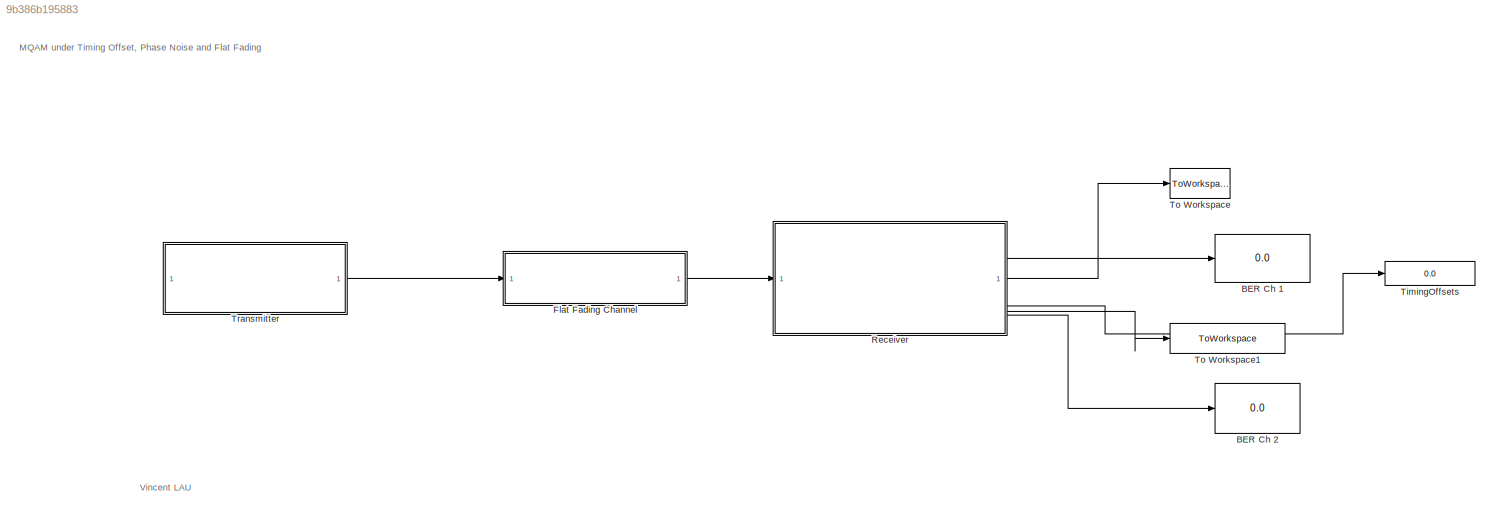
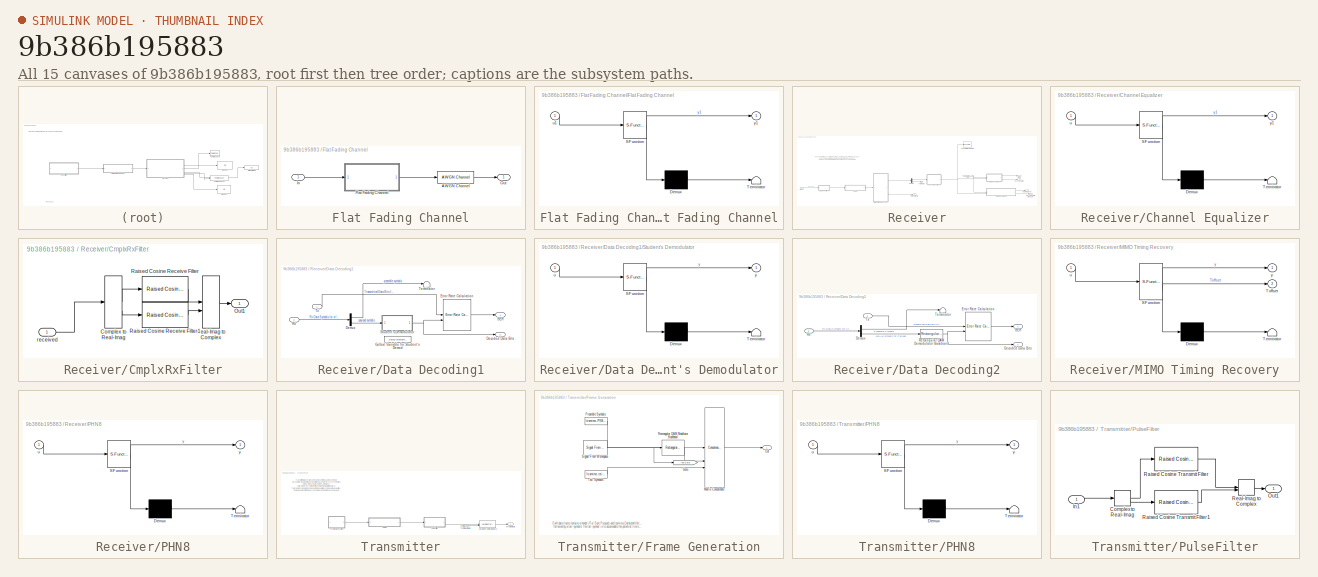
[diagram: thumbnail index - all 15 canvases of the model, root first then tree order]
MODEL slx_9b386b195883
KIND model
CONFIG AbsTol = auto
CONFIG EnableMultiTasking = off
CONFIG FixedStep = auto
CONFIG InitFcn = %qpsktxrx = commqpsktxrx_init();\nELEC4110_Init;
CONFIG MaxStep = auto
CONFIG MinStep = auto
CONFIG PreLoadFcn = qpsktxrx = commqpsktxrx_init();
CONFIG RelTol = 1e-3
CONFIG SampleTimeConstraint = Unconstrained
CONFIG SolverName = FixedStepDiscrete
CONFIG StartTime = 0.0
CONFIG StopTime = 2000
BLOCK [Display] BER Ch 1
  Decimation = 1
BLOCK [Display] BER Ch 2
  Decimation = 1
BLOCK [SubSystem] Flat Fading Channel
BLOCK [Reference] Flat Fading Channel/AWGN Channel  REF=commchan3/AWGN
Channel
  SourceBlock = commchan3/AWGN\nChannel
  SourceType = AWGN Channel
  UserDataPersistent = on
BLOCK [SubSystem] Flat Fading Channel/Flat Fading Channel
  ErrorFcn = Stateflow.Translate.translate
  PermitHierarchicalResolution = ExplicitOnly
  SFBlockType = MATLAB Function
  TreatAsAtomicUnit = on
BLOCK [Demux] Flat Fading Channel/Flat Fading Channel/ Demux 
  Outputs = 1
BLOCK [S-Function] Flat Fading Channel/Flat Fading Channel/ SFunction 
  EnableBusSupport = on
  FunctionName = sf_sfun
  Parameters = H_static
  PortCounts = [1 2]
  SFcnIsStateOwnerBlock = off
  SFunctionDeploymentMode = off
  Tag = Stateflow S-Function 11
BLOCK [Terminator] Flat Fading Channel/Flat Fading Channel/ Terminator 
BLOCK [Inport] Flat Fading Channel/Flat Fading Channel/u1
BLOCK [Outport] Flat Fading Channel/Flat Fading Channel/y1
  VectorParamsAs1DForOutWhenUnconnected = off
BLOCK [Inport] Flat Fading Channel/In
BLOCK [Outport] Flat Fading Channel/Out
  VectorParamsAs1DForOutWhenUnconnected = off
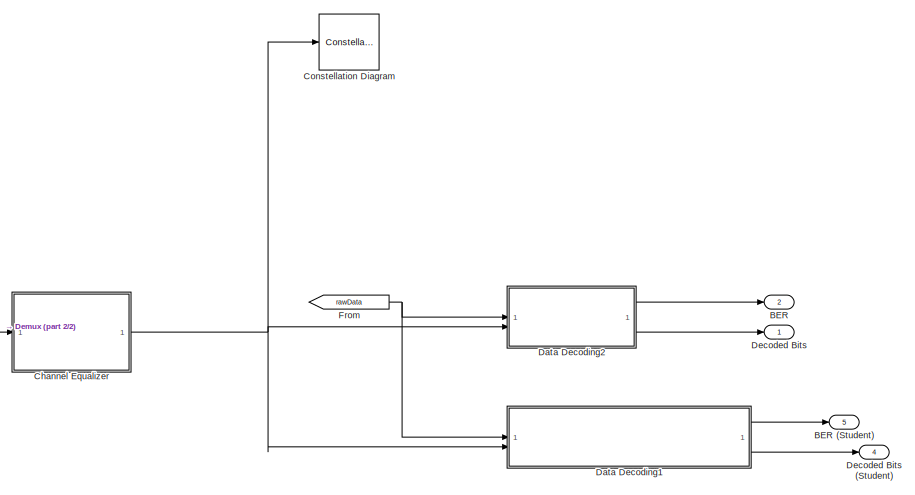
[diagram: Receiver - part 1/2, right side, full height]
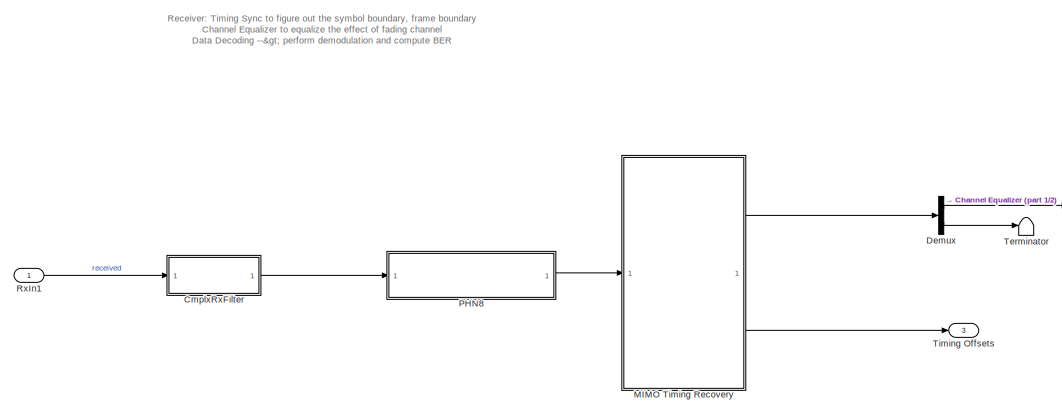
[diagram: Receiver - part 2/2, middle left region]
BLOCK [SubSystem] Receiver
  ShowPortLabels = FromPortBlockName
BLOCK [Outport] Receiver/BER
  Port = 2
  VectorParamsAs1DForOutWhenUnconnected = off
BLOCK [Outport] Receiver/BER (Student)
  Port = 5
  VectorParamsAs1DForOutWhenUnconnected = off
BLOCK [SubSystem] Receiver/Channel Equalizer
  ErrorFcn = Stateflow.Translate.translate
  PermitHierarchicalResolution = ExplicitOnly
  SFBlockType = MATLAB Function
  TreatAsAtomicUnit = on
BLOCK [Demux] Receiver/Channel Equalizer/ Demux 
  Outputs = 1
BLOCK [S-Function] Receiver/Channel Equalizer/ SFunction 
  EnableBusSupport = on
  FunctionName = sf_sfun
  Parameters = H_CSIR,PreambleSize
  PortCounts = [1 2]
  SFcnIsStateOwnerBlock = off
  SFunctionDeploymentMode = off
  Tag = Stateflow S-Function 20
BLOCK [Terminator] Receiver/Channel Equalizer/ Terminator 
BLOCK [Inport] Receiver/Channel Equalizer/u
BLOCK [Outport] Receiver/Channel Equalizer/y1
  VectorParamsAs1DForOutWhenUnconnected = off
BLOCK [SubSystem] Receiver/CmplxRxFilter
BLOCK [ComplexToRealImag] Receiver/CmplxRxFilter/Complex to Real-Imag
BLOCK [Outport] Receiver/CmplxRxFilter/Out1
  VectorParamsAs1DForOutWhenUnconnected = off
BLOCK [Reference] Receiver/CmplxRxFilter/Raised Cosine Receive Filter  REF=commfilt2/Raised Cosine
Receive Filter
  SourceBlock = commfilt2/Raised Cosine\nReceive Filter
  SourceType = Raised Cosine Receive Filter
  UserDataPersistent = on
BLOCK [Reference] Receiver/CmplxRxFilter/Raised Cosine Receive Filter1  REF=commfilt2/Raised Cosine
Receive Filter
  SourceBlock = commfilt2/Raised Cosine\nReceive Filter
  SourceType = Raised Cosine Receive Filter
  UserDataPersistent = on
BLOCK [RealImagToComplex] Receiver/CmplxRxFilter/Real-Imag to Complex
BLOCK [Inport] Receiver/CmplxRxFilter/received
BLOCK [ConstellationDiagram] Receiver/Constellation Diagram
  DefaultConfigurationName = comm.scopes.ConstellationDiagramBlockCfg
  GraphicalSettings = {"Style":{"BackgroundColor":[0.15686274509803921,0.15686274509803921,0.15686274509803921],"AxesColor":[0,0,0],"LabelsColor":[0.68627450980392157,0.68627450980392157,0.68627450980392157],"LineStyle":[],"LineColor":[],"LineWidth":[],"Marker":[],"IsRefLine":[],"FontSize":"small"},"ReferenceConstellation":{"AverageReferencePower":1,"ConstellationNormalization":"AveragePower","RefConstellationValue":"[...<+196ch>
  ReferenceConstellation = 16-QAM
  ScopeFrameLocation = window
  ScopeSpecificationString = comm.scopes.ConstellationDiagramBlockCfg('CurrentConfiguration', extmgr.ConfigurationSet(extmgr.Configuration('Core','General UI',true),extmgr.Configuration('Core','Source UI',true),extmgr.Configuration('Sources','WiredSimulink',true),extmgr.Configuration('Sources','SPTool',false),extmgr.Configuration('Sources','File',false),extmgr.Configuration('Sources','Workspace',false),extmgr.Configuration('S...<+2307ch>
  WasSavedAsWebScope = on
  WindowPosition = [-220.000000,42.000000,1443.000000,606.000000,]
BLOCK [SubSystem] Receiver/Data Decoding1
  NameLocation = top
BLOCK [Outport] Receiver/Data Decoding1/BER
  VectorParamsAs1DForOutWhenUnconnected = off
BLOCK [Outport] Receiver/Data Decoding1/Decoded Data Bits
  Port = 2
  VectorParamsAs1DForOutWhenUnconnected = off
BLOCK [Demux] Receiver/Data Decoding1/Demux
  Outputs = [[PreambleSize -1]]
BLOCK [Reference] Receiver/Data Decoding1/Error Rate Calculation  REF=commsink2/Error Rate
Calculation
  SourceBlock = commsink2/Error Rate\nCalculation
  SourceType = Error Rate Calculation
BLOCK [DataStoreMemory] Receiver/Data Decoding1/Golbal Variable for Student's Demod
  DataStoreName = M_level
  OutDataTypeStr = int16
  ReadBeforeWriteMsg = warning
  ShowAdditionalParam = off
  SignalType = real
  WriteAfterReadMsg = warning
  WriteAfterWriteMsg = warning
BLOCK [Inport] Receiver/Data Decoding1/Rx
  Port = 2
BLOCK [SubSystem] Receiver/Data Decoding1/Student's Demodulator
  ErrorFcn = Stateflow.Translate.translate
  PermitHierarchicalResolution = ExplicitOnly
  SFBlockType = MATLAB Function
  TreatAsAtomicUnit = on
BLOCK [Demux] Receiver/Data Decoding1/Student's Demodulator/ Demux 
  Outputs = 1
BLOCK [S-Function] Receiver/Data Decoding1/Student's Demodulator/ SFunction 
  EnableBusSupport = on
  FunctionName = sf_sfun
  PortCounts = [1 2]
  SFcnIsStateOwnerBlock = off
  SFunctionDeploymentMode = off
  Tag = Stateflow S-Function 2
BLOCK [Terminator] Receiver/Data Decoding1/Student's Demodulator/ Terminator 
BLOCK [Inport] Receiver/Data Decoding1/Student's Demodulator/u
BLOCK [Outport] Receiver/Data Decoding1/Student's Demodulator/y
  VectorParamsAs1DForOutWhenUnconnected = off
BLOCK [Terminator] Receiver/Data Decoding1/Terminator
BLOCK [Inport] Receiver/Data Decoding1/Tx
BLOCK [SubSystem] Receiver/Data Decoding2
  NameLocation = top
BLOCK [Outport] Receiver/Data Decoding2/BER
  VectorParamsAs1DForOutWhenUnconnected = off
BLOCK [Outport] Receiver/Data Decoding2/Decoded Data Bits
  Port = 2
  VectorParamsAs1DForOutWhenUnconnected = off
BLOCK [Demux] Receiver/Data Decoding2/Demux
  Outputs = [[PreambleSize -1]]
BLOCK [Reference] Receiver/Data Decoding2/Error Rate Calculation  REF=commsink2/Error Rate
Calculation
  SourceBlock = commsink2/Error Rate\nCalculation
  SourceType = Error Rate Calculation
BLOCK [Reference] Receiver/Data Decoding2/Rectangular QAM Demodulator Baseband  REF=commdigbbndam3/Rectangular QAM
Demodulator
Baseband
  SourceBlock = commdigbbndam3/Rectangular QAM\nDemodulator\nBaseband
  SourceType = Rectangular QAM Demodulator Baseband
BLOCK [Inport] Receiver/Data Decoding2/Rx
  Port = 2
BLOCK [Terminator] Receiver/Data Decoding2/Terminator
BLOCK [Inport] Receiver/Data Decoding2/Tx
BLOCK [Outport] Receiver/Decoded Bits
  VectorParamsAs1DForOutWhenUnconnected = off
BLOCK [Outport] Receiver/Decoded Bits (Student)
  Port = 4
  VectorParamsAs1DForOutWhenUnconnected = off
BLOCK [Demux] Receiver/Demux
  Outputs = [TotalDataPreambleSize -1]
BLOCK [From] Receiver/From
  GotoTag = rawData
  TagVisibility = global
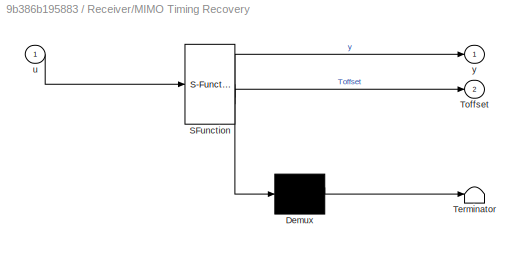
BLOCK [SubSystem] Receiver/MIMO Timing Recovery
  ErrorFcn = Stateflow.Translate.translate
  PermitHierarchicalResolution = ExplicitOnly
  SFBlockType = MATLAB Function
  TreatAsAtomicUnit = on
BLOCK [Demux] Receiver/MIMO Timing Recovery/ Demux 
  Outputs = 1
BLOCK [S-Function] Receiver/MIMO Timing Recovery/ SFunction 
  EnableBusSupport = on
  FunctionName = sf_sfun
  Parameters = TotalDataPreambleSize,TxPreamble,maxTOffset,numInterpRx,numSampPerSym
  PortCounts = [1 3]
  SFcnIsStateOwnerBlock = off
  SFunctionDeploymentMode = off
  Tag = Stateflow S-Function 21
BLOCK [Terminator] Receiver/MIMO Timing Recovery/ Terminator 
BLOCK [Outport] Receiver/MIMO Timing Recovery/Toffset
  Port = 2
  VectorParamsAs1DForOutWhenUnconnected = off
BLOCK [Inport] Receiver/MIMO Timing Recovery/u
BLOCK [Outport] Receiver/MIMO Timing Recovery/y
  VectorParamsAs1DForOutWhenUnconnected = off
BLOCK [SubSystem] Receiver/PHN8
  ErrorFcn = Stateflow.Translate.translate
  PermitHierarchicalResolution = ExplicitOnly
  SFBlockType = MATLAB Function
  TreatAsAtomicUnit = on
BLOCK [Demux] Receiver/PHN8/ Demux 
  Outputs = 1
BLOCK [S-Function] Receiver/PHN8/ SFunction 
  EnableBusSupport = on
  FunctionName = sf_sfun
  Parameters = sigma_PHN
  PortCounts = [1 2]
  SFcnIsStateOwnerBlock = off
  SFunctionDeploymentMode = off
  Tag = Stateflow S-Function 10
BLOCK [Terminator] Receiver/PHN8/ Terminator 
BLOCK [Inport] Receiver/PHN8/u
BLOCK [Outport] Receiver/PHN8/y
  VectorParamsAs1DForOutWhenUnconnected = off
BLOCK [Inport] Receiver/RxIn1
BLOCK [Terminator] Receiver/Terminator
BLOCK [Outport] Receiver/Timing Offsets 
  Port = 3
  VectorParamsAs1DForOutWhenUnconnected = off
BLOCK [Display] TimingOffsets
  Decimation = 1
BLOCK [ToWorkspace] To Workspace
  FixptAsFi = on
  MaxDataPoints = inf
  SampleTime = -1
  SaveFormat = Structure
  VariableName = rxBits
BLOCK [ToWorkspace] To Workspace1
  FixptAsFi = on
  MaxDataPoints = inf
  SampleTime = -1
  SaveFormat = Structure
  VariableName = rxBits_student
BLOCK [SubSystem] Transmitter
BLOCK [SubSystem] Transmitter/Frame Generation
BLOCK [Goto] Transmitter/Frame Generation/Goto
  GotoTag = rawData
  TagVisibility = global
BLOCK [Concatenate] Transmitter/Frame Generation/Matrix Concatenate
  Mode = Multidimensional array
  NumInputs = 3
BLOCK [Outport] Transmitter/Frame Generation/Out
  VectorParamsAs1DForOutWhenUnconnected = off
BLOCK [Constant] Transmitter/Frame Generation/Preamble Symbols
  OutDataTypeStr = double
  Value = losmimo.PNSymbols.'
  VectorParams1D = off
BLOCK [Reference] Transmitter/Frame Generation/Rectangular QAM Modulator Baseband  REF=commdigbbndam3/Rectangular QAM
Modulator
Baseband
  SourceBlock = commdigbbndam3/Rectangular QAM\nModulator\nBaseband
  SourceType = Rectangular QAM Modulator Baseband
BLOCK [Reference] Transmitter/Frame Generation/Signal From Workspace  REF=dspsrcs4/Signal From
Workspace
  SourceBlock = dspsrcs4/Signal From\nWorkspace
  SourceType = Signal From Workspace
BLOCK [Constant] Transmitter/Frame Generation/Tail Symbols
  OutDataTypeStr = double
  Value = losmimo.tailSym'
  VectorParams1D = off
BLOCK [SubSystem] Transmitter/PHN8
  ErrorFcn = Stateflow.Translate.translate
  PermitHierarchicalResolution = ExplicitOnly
  SFBlockType = MATLAB Function
  TreatAsAtomicUnit = on
BLOCK [Demux] Transmitter/PHN8/ Demux 
  Outputs = 1
BLOCK [S-Function] Transmitter/PHN8/ SFunction 
  EnableBusSupport = on
  FunctionName = sf_sfun
  Parameters = sigma_PHN
  PortCounts = [1 2]
  SFcnIsStateOwnerBlock = off
  SFunctionDeploymentMode = off
  Tag = Stateflow S-Function 3
BLOCK [Terminator] Transmitter/PHN8/ Terminator 
BLOCK [Inport] Transmitter/PHN8/u
BLOCK [Outport] Transmitter/PHN8/y
  VectorParamsAs1DForOutWhenUnconnected = off
BLOCK [SubSystem] Transmitter/PulseFilter
BLOCK [ComplexToRealImag] Transmitter/PulseFilter/Complex to Real-Imag
BLOCK [Inport] Transmitter/PulseFilter/In1
BLOCK [Outport] Transmitter/PulseFilter/Out1
  VectorParamsAs1DForOutWhenUnconnected = off
BLOCK [Reference] Transmitter/PulseFilter/Raised Cosine Transmit Filter  REF=commfilt2/Raised Cosine
Transmit Filter
  SourceBlock = commfilt2/Raised Cosine\nTransmit Filter
  SourceType = Raised Cosine Transmit Filter
  UserDataPersistent = on
BLOCK [Reference] Transmitter/PulseFilter/Raised Cosine Transmit Filter1  REF=commfilt2/Raised Cosine
Transmit Filter
  SourceBlock = commfilt2/Raised Cosine\nTransmit Filter
  SourceType = Raised Cosine Transmit Filter
  UserDataPersistent = on
BLOCK [RealImagToComplex] Transmitter/PulseFilter/Real-Imag to Complex
BLOCK [Outport] Transmitter/Tx Ant Output1
  NameLocation = top
  VectorParamsAs1DForOutWhenUnconnected = off
BLOCK [Constant] Transmitter/Tx Timing Offset8
  Value = losmimo.TxTimingOffset(1)
BLOCK [Reference] Transmitter/Variable Fractional Delay8  REF=dspsigops/Variable
Fractional Delay
  SourceBlock = dspsigops/Variable\nFractional Delay
  SourceType = Variable Fractional Delay
  UserDataPersistent = on
ANNOTATION (root): Vincent LAU
ANNOTATION (root): MQAM under Timing Offset, Phase Noise and Flat Fading
ANNOTATION Receiver: Receiver: Timing Sync to figure out the symbol boundary, frame boundary Channel Equalizer to equalize the effect of fading channel Data Decoding --> perform demodulation and compute BER
ANNOTATION Transmitter: Transmitter: It generates one frame each time. A frame consists of a preamble (length defined by losmimo.SeqLength) for synchronization + data symbols (length = DataFrameSize) + Tail symbols (for continuity of the frame in modeling time delays) The frame of symbols is then mapped into modulation symbols via the pulse filter (up converted to samples). Finally, we add in artifical delays (in samples...<+55ch>
ANNOTATION Transmitter/Frame Generation: Each data frame contains a header (For Sync Purpose) and losmimo.DataLength bits data bits, followed by a tail symbols The tail symbol is to accomodate the potential timing offset at the Tx and Rx filters
LINE Flat Fading Channel/AWGN Channel:1 -> Flat Fading Channel/Out:1
LINE Flat Fading Channel/Flat Fading Channel:1 -> Flat Fading Channel/AWGN Channel:1
LINE Flat Fading Channel/In:1 -> Flat Fading Channel/Flat Fading Channel:1
LINE Flat Fading Channel:1 -> Receiver:1
NET Receiver/Channel Equalizer:1 -> Receiver/Constellation Diagram:1, Receiver/Data Decoding1:2, Receiver/Data Decoding2:2
LINE Receiver/CmplxRxFilter/Complex to Real-Imag:1 -> Receiver/CmplxRxFilter/Raised Cosine Receive Filter:1
LINE Receiver/CmplxRxFilter/Complex to Real-Imag:2 -> Receiver/CmplxRxFilter/Raised Cosine Receive Filter1:1
LINE Receiver/CmplxRxFilter/Raised Cosine Receive Filter1:1 -> Receiver/CmplxRxFilter/Real-Imag to Complex:2
LINE Receiver/CmplxRxFilter/Raised Cosine Receive Filter:1 -> Receiver/CmplxRxFilter/Real-Imag to Complex:1
LINE Receiver/CmplxRxFilter/Real-Imag to Complex:1 -> Receiver/CmplxRxFilter/Out1:1
LINE Receiver/CmplxRxFilter/received:1 -> Receiver/CmplxRxFilter/Complex to Real-Imag:1
LINE Receiver/CmplxRxFilter:1 -> Receiver/PHN8:1
LINE Receiver/Data Decoding1/Demux:1 -> Receiver/Data Decoding1/Terminator:1
LINE Receiver/Data Decoding1/Demux:2 -> Receiver/Data Decoding1/Student's Demodulator:1
LINE Receiver/Data Decoding1/Error Rate Calculation:1 -> Receiver/Data Decoding1/BER:1
LINE Receiver/Data Decoding1/Rx:1 -> Receiver/Data Decoding1/Demux:1
NET Receiver/Data Decoding1/Student's Demodulator:1 -> Receiver/Data Decoding1/Decoded Data Bits:1, Receiver/Data Decoding1/Error Rate Calculation:2
LINE Receiver/Data Decoding1/Tx:1 -> Receiver/Data Decoding1/Error Rate Calculation:1
LINE Receiver/Data Decoding1:1 -> Receiver/BER (Student):1
LINE Receiver/Data Decoding1:2 -> Receiver/Decoded Bits (Student):1
LINE Receiver/Data Decoding2/Demux:1 -> Receiver/Data Decoding2/Terminator:1
LINE Receiver/Data Decoding2/Demux:2 -> Receiver/Data Decoding2/Rectangular QAM Demodulator Baseband:1
LINE Receiver/Data Decoding2/Error Rate Calculation:1 -> Receiver/Data Decoding2/BER:1
NET Receiver/Data Decoding2/Rectangular QAM Demodulator Baseband:1 -> Receiver/Data Decoding2/Decoded Data Bits:1, Receiver/Data Decoding2/Error Rate Calculation:2
LINE Receiver/Data Decoding2/Rx:1 -> Receiver/Data Decoding2/Demux:1
LINE Receiver/Data Decoding2/Tx:1 -> Receiver/Data Decoding2/Error Rate Calculation:1
LINE Receiver/Data Decoding2:1 -> Receiver/BER:1
LINE Receiver/Data Decoding2:2 -> Receiver/Decoded Bits:1
LINE Receiver/Demux:1 -> Receiver/Channel Equalizer:1
LINE Receiver/Demux:2 -> Receiver/Terminator:1
NET Receiver/From:1 -> Receiver/Data Decoding1:1, Receiver/Data Decoding2:1
LINE Receiver/MIMO Timing Recovery:1 -> Receiver/Demux:1
LINE Receiver/MIMO Timing Recovery:2 -> Receiver/Timing Offsets :1
LINE Receiver/PHN8:1 -> Receiver/MIMO Timing Recovery:1
LINE Receiver/RxIn1:1 -> Receiver/CmplxRxFilter:1
LINE Receiver:1 -> To Workspace:1
LINE Receiver:2 -> BER Ch 1:1
LINE Receiver:3 -> TimingOffsets:1
LINE Receiver:4 -> To Workspace1:1
LINE Receiver:5 -> BER Ch 2:1
LINE Transmitter/Frame Generation/Matrix Concatenate:1 -> Transmitter/Frame Generation/Out:1
LINE Transmitter/Frame Generation/Preamble Symbols:1 -> Transmitter/Frame Generation/Matrix Concatenate:1
LINE Transmitter/Frame Generation/Rectangular QAM Modulator Baseband:1 -> Transmitter/Frame Generation/Matrix Concatenate:2
NET Transmitter/Frame Generation/Signal From Workspace:1 -> Transmitter/Frame Generation/Goto:1, Transmitter/Frame Generation/Rectangular QAM Modulator Baseband:1
LINE Transmitter/Frame Generation/Tail Symbols:1 -> Transmitter/Frame Generation/Matrix Concatenate:3
LINE Transmitter/Frame Generation:1 -> Transmitter/PHN8:1
LINE Transmitter/PHN8:1 -> Transmitter/PulseFilter:1
LINE Transmitter/PulseFilter/Complex to Real-Imag:1 -> Transmitter/PulseFilter/Raised Cosine Transmit Filter:1
LINE Transmitter/PulseFilter/Complex to Real-Imag:2 -> Transmitter/PulseFilter/Raised Cosine Transmit Filter1:1
LINE Transmitter/PulseFilter/In1:1 -> Transmitter/PulseFilter/Complex to Real-Imag:1
LINE Transmitter/PulseFilter/Raised Cosine Transmit Filter1:1 -> Transmitter/PulseFilter/Real-Imag to Complex:2
LINE Transmitter/PulseFilter/Raised Cosine Transmit Filter:1 -> Transmitter/PulseFilter/Real-Imag to Complex:1
LINE Transmitter/PulseFilter/Real-Imag to Complex:1 -> Transmitter/PulseFilter/Out1:1
LINE Transmitter/PulseFilter:1 -> Transmitter/Variable Fractional Delay8:1
LINE Transmitter/Tx Timing Offset8:1 -> Transmitter/Variable Fractional Delay8:2
LINE Transmitter/Variable Fractional Delay8:1 -> Transmitter/Tx Ant Output1:1
LINE Transmitter:1 -> Flat Fading Channel:1
note: NET lines group one-source signal fan-out (src -> all destinations, sorted); 1:1 wires keep LINE
CHART Receiver/Data Decoding1/Student's Demodulator states=1 transitions=1
  STATE_LABEL 'eML_blk_kernel()'
  STATE_LABEL 'SCRIPT:\nfunction y = MQAM_Demod(u)\nglobal M_level\n\n% Gray Coding\naverageSymbolPower = 1;\ndist = sqrt(averageSymbolPower/10);\n%disp(dist)\nseq = [1+1i, 1+3i, 3+1i, 3+3i, -1+1i, -1+3i, -3+1i, -3+3i, -1-1i, -1-3i, -3-1i, -3-3i, 1-1i, 1-3i, 3-1i, 3-3i];\nseq = dist * seq;\n%global numDataBits;\n% NumSym = length(u); % Number of received symbols\n% Put your demodulator design here\n\nseqArray = [u, u, u, u, u...<+1984ch>'
CHART Transmitter/PHN8 states=1 transitions=1
  STATE_LABEL 'eML_blk_kernel()'
  STATE_LABEL 'SCRIPT:\nfunction y = PhNoiseGen(u,sigma_PHN)\n% sigma_PHN = std deviation of the PHN (defined as workspace variable)\n% in degree.\n% Please implement the PHN generator using Wiener model as in that paper\n% (in email). \n\n\n\ny = u;\n'
CHART Receiver/PHN8 states=1 transitions=1
  STATE_LABEL 'eML_blk_kernel()'
  STATE_LABEL 'SCRIPT:\nfunction y = PhNoiseGen(u,sigma_PHN)\n% sigma_PHN = std deviation of the PHN (defined as workspace variable)\n% in degree.\n% Please implement the PHN generator using Wiener model as in that paper\n% (in email). \n\n\n\ny = u;\n'
CHART Flat Fading Channel/Flat Fading Channel states=1 transitions=1
  STATE_LABEL 'eML_blk_kernel()'
  STATE_LABEL 'SCRIPT:\nfunction y1  = Fading_Ch(u1, H_static)\n% Input: u1 = tx samples from 1 Tx antennas\n% Output: y1 = rx samples after fading channel \n% H_static = static fading channel [Complex] (Compute Offline and initialize in the ELEC4110_Init.m \n\n\ny1 = H_static*(u1);  % y1 is the channel outputs (8 x Tsize)\n'
CHART Receiver/Channel Equalizer states=1 transitions=1
  STATE_LABEL 'eML_blk_kernel()'
  STATE_LABEL "SCRIPT:\nfunction y1  = ChannelEqualizer(u,H_CSIR, PreambleSize)\n% inputs u = 8Len x 1 column vectors (concatenated samples from 8 streams). \n% parameter = CSIR (1x1 estimate of channel fading H)\n% Compute the Decorrelator \n\nTsize = length(u);\n%[U,S,V] = svd(H_CSIR);\ninput = reshape(u,[Tsize,1]).'; %input = 8 x numSamp\ntIdx = [PreambleSize+1:Tsize];\nr = (H_CSIR'/abs(H_CSIR)^2)*input(:,tIdx);   % eq...<+626ch>"
CHART Receiver/MIMO Timing 
Recovery states=1 transitions=1
  STATE_LABEL 'eML_blk_kernel()'
  STATE_LABEL 'SCRIPT:\nfunction [y,Toffset]  = Timing_Sync(u,TxPreamble, numSampPerSym, TotalDataPreambleSize, numInterpRx,maxTOffset)\n\n% Perform Timing Sync\n% u Input samples (T x 1)\n% y, ...... Output symbols (synchronized to 1 sample (optimally sampled)\n% % Tx Preambles = Np\n% numSampPerSym = # of samples per symbol in the input stream\n% TotalFrameSize = # of symbols per frame in the outputs\n% numInterpRx = i...<+1898ch>'
CHART  states=0 transitions=0
CHART  states=0 transitions=0
CHART  states=0 transitions=0
CHART  states=0 transitions=0
CHART  states=0 transitions=0
CHART  states=0 transitions=0
